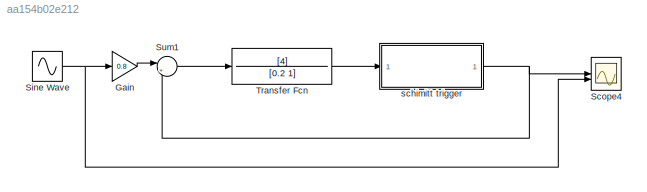
MODEL slx_aa154b02e212
KIND model
CONFIG AbsTol = auto
CONFIG EnableMultiTasking = off
CONFIG FixedStep = auto
CONFIG MaxStep = auto
CONFIG MinStep = auto
CONFIG RelTol = 1e-5
CONFIG SampleTimeConstraint = Unconstrained
CONFIG SolverName = daessc
CONFIG StartTime = 0.0
CONFIG StopTime = 10.0
BLOCK [Gain] Gain
  Gain = 0.8
BLOCK [Scope] Scope4
  Floating = off
  NumInputPorts = 2
  ScopeSpecificationString = Simulink.scopes.TimeScopeBlockCfg('CurrentConfiguration', extmgr.ConfigurationSet(extmgr.Configuration('Core','General UI',true),extmgr.Configuration('Core','Source UI',true),extmgr.Configuration('Sources','WiredSimulink',true),extmgr.Configuration('Visuals','Time Domain',true,'SerializedDisplays',{struct('MinYLimReal','-1.25','MaxYLimReal','1.25','YLabelReal','','MinYLimMag','0.00000','MaxYLimMag...<+1383ch>
BLOCK [Sin] Sine Wave
  Frequency = 0.1*2*pi
  SampleTime = 0
BLOCK [Sum] Sum1
  Inputs = |+-
BLOCK [TransferFcn] Transfer Fcn
  Denominator = [0.2 1]
  Numerator = [4]
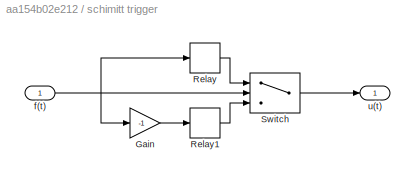
BLOCK [SubSystem] schimitt trigger
BLOCK [Gain] schimitt trigger/Gain
  Gain = -1
BLOCK [Relay] schimitt trigger/Relay
  OffSwitchValue = 0.15
  OnSwitchValue = 0.5
BLOCK [Relay] schimitt trigger/Relay1
  OffSwitchValue = 0.15
  OnOutputValue = -1
  OnSwitchValue = 0.5
BLOCK [Switch] schimitt trigger/Switch
  Criteria = u2 > Threshold
  InputSameDT = off
  SaturateOnIntegerOverflow = off
BLOCK [Inport] schimitt trigger/f(t)
BLOCK [Outport] schimitt trigger/u(t)
LINE Gain:1 -> Sum1:1
NET Sine Wave:1 -> Gain:1, Scope4:2
LINE Sum1:1 -> Transfer Fcn:1
LINE Transfer Fcn:1 -> schimitt trigger:1
LINE schimitt trigger/Gain:1 -> schimitt trigger/Relay1:1
LINE schimitt trigger/Relay1:1 -> schimitt trigger/Switch:3
LINE schimitt trigger/Relay:1 -> schimitt trigger/Switch:1
LINE schimitt trigger/Switch:1 -> schimitt trigger/u(t):1
NET schimitt trigger/f(t):1 -> schimitt trigger/Gain:1, schimitt trigger/Relay:1, schimitt trigger/Switch:2
NET schimitt trigger:1 -> Scope4:1, Sum1:2
note: NET lines group one-source signal fan-out (src -> all destinations, sorted); 1:1 wires keep LINE
